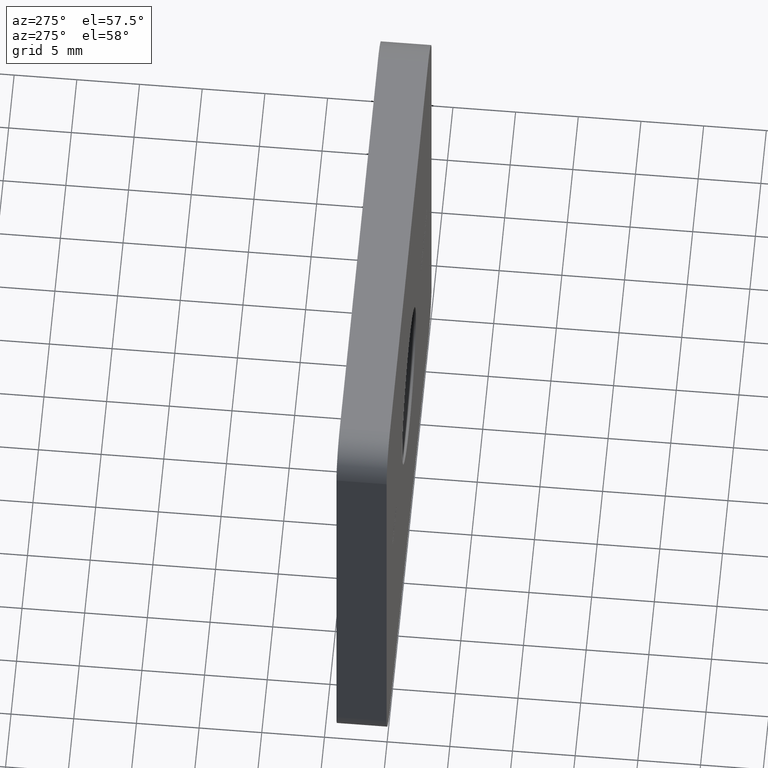
[diagram: clean part render]
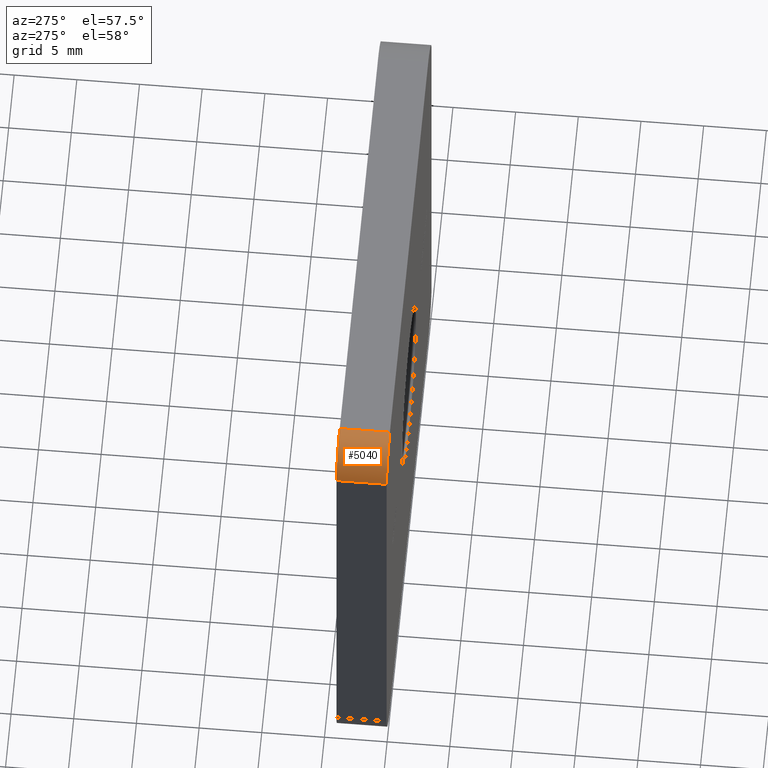
[diagram: same view with one face highlighted and labeled with its STEP entity id]
A machine part, auxiliary view. The second image highlights one B-rep face of the part: STEP entity #5040.
In plain terms, the highlighted cylindrical surface (partial cylindrical patch) has radius 3 mm, axis along (0, -1, 0).
Its self-contained STEP definition (entity closure, byte-faithful):
#526 = VERTEX_POINT ( 'NONE', #8702 ) ;
#1212 = CARTESIAN_POINT ( 'NONE',  ( -17.49999999999999645, 0.000000000000000000, 20.50000000000000355 ) ) ;
#1574 = CARTESIAN_POINT ( 'NONE',  ( -17.49999999999999645, 4.000000000000000000, 17.50000000000000355 ) ) ;
#1904 = VECTOR ( 'NONE', #3356, 1000.000000000000000 ) ;
#2564 = CARTESIAN_POINT ( 'NONE',  ( -17.49999999999999645, 4.000000000000000000, 17.50000000000000355 ) ) ;
#2782 = DIRECTION ( 'NONE',  ( 0.000000000000000000, 1.000000000000000000, 0.000000000000000000 ) ) ;
#3110 = VECTOR ( 'NONE', #6144, 1000.000000000000000 ) ;
#3289 = VERTEX_POINT ( 'NONE', #15220 ) ;
#3356 = DIRECTION ( 'NONE',  ( -0.000000000000000000, 1.000000000000000000, -0.000000000000000000 ) ) ;
#3575 = FACE_OUTER_BOUND ( 'NONE', #3949, .T. ) ;
#3826 = VERTEX_POINT ( 'NONE', #7499 ) ;
#3949 = EDGE_LOOP ( 'NONE', ( #11129, #15765, #15795, #9427 ) ) ;
#4322 = LINE ( 'NONE', #4702, #3110 ) ;
#4702 = CARTESIAN_POINT ( 'NONE',  ( -17.49999999999999645, 4.000000000000000000, 20.50000000000000355 ) ) ;
#4885 = CIRCLE ( 'NONE', #8487, 2.999999999999999112 ) ;
#5040 = ADVANCED_FACE ( 'NONE', ( #3575 ), #6769, .T. ) ;
#5130 = LINE ( 'NONE', #9687, #1904 ) ;
#6144 = DIRECTION ( 'NONE',  ( 0.000000000000000000, -1.000000000000000000, 0.000000000000000000 ) ) ;
#6769 = CYLINDRICAL_SURFACE ( 'NONE', #8538, 2.999999999999999112 ) ;
#7499 = CARTESIAN_POINT ( 'NONE',  ( -20.49999999999999645, 0.000000000000000000, 17.50000000000000711 ) ) ;
#8487 = AXIS2_PLACEMENT_3D ( 'NONE', #11578, #15528, #14191 ) ;
#8534 = EDGE_CURVE ( 'NONE', #526, #10215, #4322, .T. ) ;
#8538 = AXIS2_PLACEMENT_3D ( 'NONE', #1574, #12786, #15348 ) ;
#8702 = CARTESIAN_POINT ( 'NONE',  ( -17.49999999999999645, 4.000000000000000000, 20.50000000000000355 ) ) ;
#8726 = EDGE_CURVE ( 'NONE', #3826, #3289, #5130, .T. ) ;
#8882 = DIRECTION ( 'NONE',  ( 0.000000000000000000, 0.000000000000000000, 1.000000000000000000 ) ) ;
#9427 = ORIENTED_EDGE ( 'NONE', *, *, #8534, .F. ) ;
#9687 = CARTESIAN_POINT ( 'NONE',  ( -20.49999999999999645, 4.000000000000000000, 17.50000000000000711 ) ) ;
#10215 = VERTEX_POINT ( 'NONE', #1212 ) ;
#11129 = ORIENTED_EDGE ( 'NONE', *, *, #13261, .F. ) ;
#11578 = CARTESIAN_POINT ( 'NONE',  ( -17.49999999999999645, 0.000000000000000000, 17.50000000000000355 ) ) ;
#12786 = DIRECTION ( 'NONE',  ( 0.000000000000000000, -1.000000000000000000, 0.000000000000000000 ) ) ;
#13261 = EDGE_CURVE ( 'NONE', #3289, #526, #16428, .T. ) ;
#13785 = EDGE_CURVE ( 'NONE', #10215, #3826, #4885, .T. ) ;
#14191 = DIRECTION ( 'NONE',  ( 0.000000000000000000, 0.000000000000000000, 1.000000000000000000 ) ) ;
#14747 = AXIS2_PLACEMENT_3D ( 'NONE', #2564, #2782, #8882 ) ;
#15220 = CARTESIAN_POINT ( 'NONE',  ( -20.49999999999999645, 4.000000000000000000, 17.50000000000000711 ) ) ;
#15348 = DIRECTION ( 'NONE',  ( 0.000000000000000000, 0.000000000000000000, -1.000000000000000000 ) ) ;
#15528 = DIRECTION ( 'NONE',  ( -0.000000000000000000, -1.000000000000000000, -0.000000000000000000 ) ) ;
#15765 = ORIENTED_EDGE ( 'NONE', *, *, #8726, .F. ) ;
#15795 = ORIENTED_EDGE ( 'NONE', *, *, #13785, .F. ) ;
#16428 = CIRCLE ( 'NONE', #14747, 2.999999999999999112 ) ;